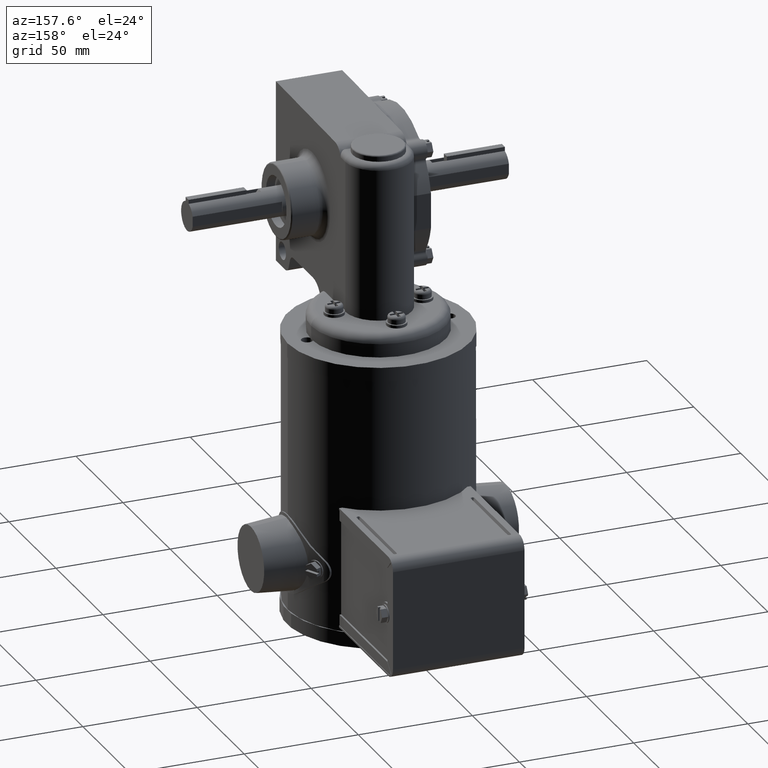
[diagram: clean part render]
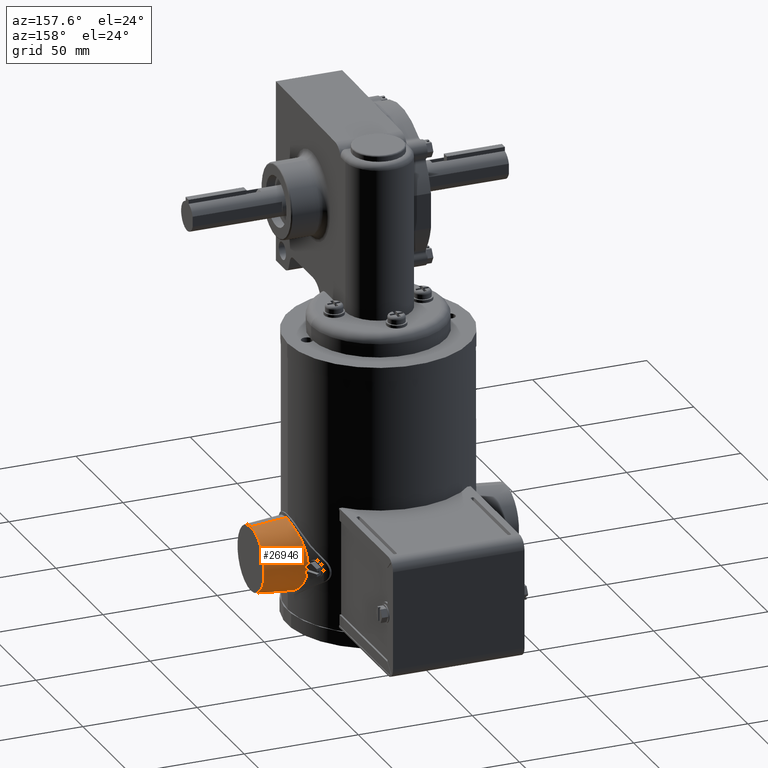
[diagram: same view with one face highlighted and labeled with its STEP entity id]
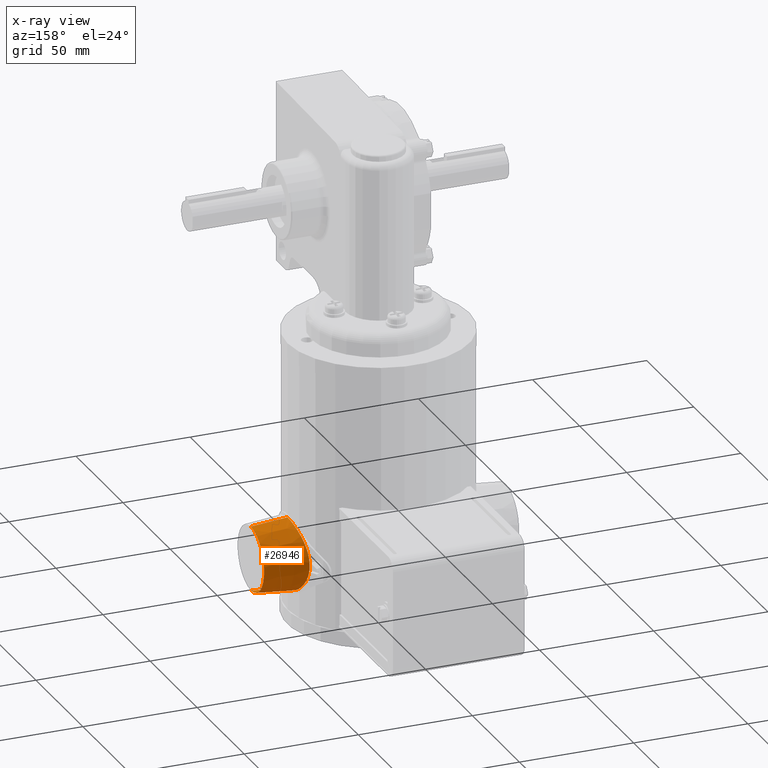
[diagram: x-ray of the same camera — body ghosted, the highlighted face saturated]
A machine part, auxiliary view. The second image highlights one B-rep face of the part: STEP entity #26946.
The next image is the same camera in x-ray: the body ghosted, the highlighted face saturated — about 0% of this face is hidden behind the body in this view.
In plain terms, the highlighted conical surface has half-angle 5 deg.
Its self-contained STEP definition (entity closure, byte-faithful):
#732 = EDGE_CURVE ( 'NONE', #1474, #18289, #12802, .T. ) ;
#986 = FACE_OUTER_BOUND ( 'NONE', #25042, .T. ) ;
#1466 = CARTESIAN_POINT ( 'NONE',  ( 1.560937288544655500, 0.07277900882165479200, -4.583810513606582800 ) ) ;
#1474 = VERTEX_POINT ( 'NONE', #21180 ) ;
#1563 = CARTESIAN_POINT ( 'NONE',  ( 1.469941703517666500, 0.5298918123291536100, -4.882499106706187100 ) ) ;
#1662 = CARTESIAN_POINT ( 'NONE',  ( 1.459428750983772200, 0.5581645358877556100, -5.448121240871495600 ) ) ;
#1748 = CARTESIAN_POINT ( 'NONE',  ( 1.542835544801296900, 0.2478352492964187600, -5.750892456123928300 ) ) ;
#3103 = VERTEX_POINT ( 'NONE', #19661 ) ;
#3572 = CARTESIAN_POINT ( 'NONE',  ( 1.556976240772422600, 0.1327793339256771700, -4.594609311019440600 ) ) ;
#3669 = CARTESIAN_POINT ( 'NONE',  ( 1.459417635706792500, 0.5581921932297877500, -4.935848242282936800 ) ) ;
#3692 = VECTOR ( 'NONE', #14526, 39.37007874015748100 ) ;
#3766 = CARTESIAN_POINT ( 'NONE',  ( 1.470022105416793500, 0.5296690482322886600, -5.501767629015589000 ) ) ;
#3845 = CARTESIAN_POINT ( 'NONE',  ( 1.570000000000000300, -0.009186274349188141400, -4.579446291046613400 ) ) ;
#3863 = CARTESIAN_POINT ( 'NONE',  ( 1.555511902750471400, 0.1529914317663684500, -5.785309630188698400 ) ) ;
#4083 = AXIS2_PLACEMENT_3D ( 'NONE', #11248, #26035, #13374 ) ;
#5542 = AXIS2_PLACEMENT_3D ( 'NONE', #11244, #9089, #7056 ) ;
#5679 = CARTESIAN_POINT ( 'NONE',  ( 1.570000000000000300, -0.009186274349188066800, -5.804446291046613900 ) ) ;
#5729 = CARTESIAN_POINT ( 'NONE',  ( 1.550851568673694600, 0.1914413092559509300, -4.611108014436371900 ) ) ;
#5818 = CARTESIAN_POINT ( 'NONE',  ( 1.445147561625384400, 0.5941687984426247100, -5.029732237047085200 ) ) ;
#5915 = CARTESIAN_POINT ( 'NONE',  ( 1.481606193973517900, 0.4963805514632049200, -5.551796953836981400 ) ) ;
#6014 = CARTESIAN_POINT ( 'NONE',  ( 1.560958877965417100, 0.07231837336906318800, -5.800142494373814000 ) ) ;
#6427 = ORIENTED_EDGE ( 'NONE', *, *, #732, .T. ) ;
#7056 = DIRECTION ( 'NONE',  ( 0.0000000000000000000, 0.0000000000000000000, -1.000000000000000000 ) ) ;
#7113 = VECTOR ( 'NONE', #10021, 39.37007874015748100 ) ;
#7854 = CARTESIAN_POINT ( 'NONE',  ( 1.539924523123420200, 0.2673819599291081800, -4.640987430261614800 ) ) ;
#7953 = CARTESIAN_POINT ( 'NONE',  ( 1.436386836960556100, 0.6149789470875398600, -5.150890723002581800 ) ) ;
#8034 = CARTESIAN_POINT ( 'NONE',  ( 1.493838358662164900, 0.4582990843716382400, -5.598424178616176600 ) ) ;
#8129 = CARTESIAN_POINT ( 'NONE',  ( 1.562592633834070500, 0.01116270617488668600, -5.805094351612717100 ) ) ;
#9089 = DIRECTION ( 'NONE',  ( -1.000000000000000000, -0.0000000000000000000, -0.0000000000000000000 ) ) ;
#9332 = LINE ( 'NONE', #3845, #3692 ) ;
#9979 = CARTESIAN_POINT ( 'NONE',  ( 1.518408349031761900, 0.3701701550724434400, -4.703677841062019900 ) ) ;
#10021 = DIRECTION ( 'NONE',  ( -0.9961946980917454300, 0.0000000000000000000, -0.08715574274765836000 ) ) ;
#10075 = CARTESIAN_POINT ( 'NONE',  ( 1.436807727143277300, 0.6139991037970151700, -5.232298879916016600 ) ) ;
#10176 = CARTESIAN_POINT ( 'NONE',  ( 1.510387955288117000, 0.4012867500109716400, -5.655300944132897600 ) ) ;
#10882 = CARTESIAN_POINT ( 'NONE',  ( 1.562472995722993000, -0.009186274349188079000, -4.578787763502062600 ) ) ;
#11244 = CARTESIAN_POINT ( 'NONE',  ( 1.570000000000000300, -0.009186274349188066800, -5.191946291046614100 ) ) ;
#11248 = CARTESIAN_POINT ( 'NONE',  ( 2.195000000000000300, -0.009186274349188066800, -5.191946291046614100 ) ) ;
#11282 = B_SPLINE_CURVE_WITH_KNOTS ( 'NONE', 3,
 ( #24664, #26839, #14161, #1466, #16330, #3572, #18450, #5729, #20543, #7854, #22673, #9979, #24763, #12134, #26918, #14266, #1563, #16416, #3669, #18542, #5818, #20632, #7953, #22770, #10075, #24860, #12230, #27007, #14352, #1662, #16503, #3766, #18630, #5915, #20733, #8034, #22870, #10176, #24943, #12328, #27108, #14449, #1748, #16606, #3863, #18717, #6014, #20827, #8129, #22952 ),
 .UNSPECIFIED., .F., .F.,
 ( 4, 2, 2, 2, 2, 2, 2, 2, 2, 2, 2, 2, 2, 2, 2, 2, 2, 2, 2, 2, 2, 2, 2, 2, 4 ),
 ( 0.02960932508735104900, 0.03116098691424253700, 0.03271264874113402600, 0.03426431056802551500, 0.03581597239491700300, 0.03891929604869998100, 0.04202261970248296500, 0.04512594335626594200, 0.04667760518315743800, 0.04822926701004892600, 0.05133259066383191700, 0.05443591431761490200, 0.05598757614450639000, 0.05753923797139788600, 0.06064256162518079400, 0.06219422345207224800, 0.06374588527896370100, 0.06529754710585515500, 0.06684920893274662300, 0.06995253258652946200, 0.07150419441342087400, 0.07305585624031230000, 0.07615917989409515300, 0.07771084172098656500, 0.07926250354787799100 ),
 .UNSPECIFIED. ) ;
#12134 = CARTESIAN_POINT ( 'NONE',  ( 1.493799509591879700, 0.4591898149780764300, -4.785020298840096900 ) ) ;
#12230 = CARTESIAN_POINT ( 'NONE',  ( 1.439911815109585500, 0.6066961319876195100, -5.293595367101666200 ) ) ;
#12328 = CARTESIAN_POINT ( 'NONE',  ( 1.529538135015781500, 0.3197112992602159100, -5.713227907191817500 ) ) ;
#12623 = EDGE_CURVE ( 'NONE', #26882, #18289, #11282, .T. ) ;
#12802 = LINE ( 'NONE', #5679, #7113 ) ;
#13374 = DIRECTION ( 'NONE',  ( 0.0000000000000000000, 0.0000000000000000000, -1.000000000000000000 ) ) ;
#13448 = EDGE_CURVE ( 'NONE', #3103, #26882, #9332, .T. ) ;
#13606 = ORIENTED_EDGE ( 'NONE', *, *, #12623, .F. ) ;
#14161 = CARTESIAN_POINT ( 'NONE',  ( 1.562304899903300500, 0.03202190863054296700, -4.579816754239791600 ) ) ;
#14266 = CARTESIAN_POINT ( 'NONE',  ( 1.473773422209862600, 0.5191761461394885900, -4.865177318112071000 ) ) ;
#14352 = CARTESIAN_POINT ( 'NONE',  ( 1.450098056281045300, 0.5821654322040442600, -5.392119608468100900 ) ) ;
#14449 = CARTESIAN_POINT ( 'NONE',  ( 1.539764743648097500, 0.2662090201922960900, -5.742378541967112500 ) ) ;
#14526 = DIRECTION ( 'NONE',  ( -0.9961946980917454300, -1.067350013832299500E-017, 0.08715574274765836000 ) ) ;
#16330 = CARTESIAN_POINT ( 'NONE',  ( 1.559862098899023900, 0.09292791973299986700, -4.586778055309287600 ) ) ;
#16416 = CARTESIAN_POINT ( 'NONE',  ( 1.462773612009088800, 0.5493699159253070400, -4.917797920662597900 ) ) ;
#16503 = CARTESIAN_POINT ( 'NONE',  ( 1.462845238657859000, 0.5491794777714766900, -5.466468705952733500 ) ) ;
#16592 = CIRCLE ( 'NONE', #4083, 0.5578195852962972700 ) ;
#16606 = CARTESIAN_POINT ( 'NONE',  ( 1.551154505610561100, 0.1917192377112365600, -5.773707716272981300 ) ) ;
#17409 = ORIENTED_EDGE ( 'NONE', *, *, #20912, .T. ) ;
#18289 = VERTEX_POINT ( 'NONE', #24402 ) ;
#18450 = CARTESIAN_POINT ( 'NONE',  ( 1.555165476164365600, 0.1524818175841118900, -4.599473085097154800 ) ) ;
#18542 = CARTESIAN_POINT ( 'NONE',  ( 1.450187725159959500, 0.5819366389686370100, -4.991214526618678700 ) ) ;
#18630 = CARTESIAN_POINT ( 'NONE',  ( 1.473798731214031000, 0.5191029433200337100, -5.518823336483082500 ) ) ;
#18717 = CARTESIAN_POINT ( 'NONE',  ( 1.559869991836788900, 0.09282354504744191900, -5.797135903754101700 ) ) ;
#19661 = CARTESIAN_POINT ( 'NONE',  ( 2.195000000000000300, -0.009186274349188139700, -4.634126705750316200 ) ) ;
#20200 = CONICAL_SURFACE ( 'NONE', #5542, 0.6125000000000000400, 0.08726646259971666800 ) ;
#20543 = CARTESIAN_POINT ( 'NONE',  ( 1.548332618310539500, 0.2107983703180208200, -4.617922278453274700 ) ) ;
#20632 = CARTESIAN_POINT ( 'NONE',  ( 1.438173020934059700, 0.6108571009425570700, -5.110348830990980100 ) ) ;
#20733 = CARTESIAN_POINT ( 'NONE',  ( 1.485637241140668600, 0.4842242045605479300, -5.567714774400037900 ) ) ;
#20827 = CARTESIAN_POINT ( 'NONE',  ( 1.562315018920336100, 0.03153327578527927900, -5.804108060051464500 ) ) ;
#20912 = EDGE_CURVE ( 'NONE', #3103, #1474, #16592, .T. ) ;
#21180 = CARTESIAN_POINT ( 'NONE',  ( 2.195000000000000300, -0.009186274349188066800, -5.749765876342911100 ) ) ;
#21248 = ORIENTED_EDGE ( 'NONE', *, *, #13448, .F. ) ;
#22673 = CARTESIAN_POINT ( 'NONE',  ( 1.533229937757293300, 0.3029782435761446100, -4.659713084794766800 ) ) ;
#22770 = CARTESIAN_POINT ( 'NONE',  ( 1.436370620195488200, 0.6150168222315870500, -5.211914728477236900 ) ) ;
#22870 = CARTESIAN_POINT ( 'NONE',  ( 1.498025396862271400, 0.4444663155505493800, -5.613268430423463700 ) ) ;
#22952 = CARTESIAN_POINT ( 'NONE',  ( 1.562472995722992100, -0.009186274349188066800, -5.805104818591163800 ) ) ;
#24402 = CARTESIAN_POINT ( 'NONE',  ( 1.562472995722992100, -0.009186274349188066800, -5.805104818591163800 ) ) ;
#24664 = CARTESIAN_POINT ( 'NONE',  ( 1.562472995722993000, -0.009186274349188079000, -4.578787763502062600 ) ) ;
#24763 = CARTESIAN_POINT ( 'NONE',  ( 1.510204641722419100, 0.4019629350532183400, -4.729187198625161200 ) ) ;
#24860 = CARTESIAN_POINT ( 'NONE',  ( 1.438575579846464100, 0.6098455913684877000, -5.273154962611698700 ) ) ;
#24943 = CARTESIAN_POINT ( 'NONE',  ( 1.518422716043113900, 0.3701115923246775000, -5.680258804823527200 ) ) ;
#25042 = EDGE_LOOP ( 'NONE', ( #21248, #17409, #6427, #13606 ) ) ;
#26035 = DIRECTION ( 'NONE',  ( -1.000000000000000000, 0.0000000000000000000, -0.0000000000000000000 ) ) ;
#26839 = CARTESIAN_POINT ( 'NONE',  ( 1.562593477093204600, 0.01130613424736531600, -4.578798304256123300 ) ) ;
#26882 = VERTEX_POINT ( 'NONE', #10882 ) ;
#26918 = CARTESIAN_POINT ( 'NONE',  ( 1.485541898728208300, 0.4849272110870622700, -4.815471420125983400 ) ) ;
#26946 = ADVANCED_FACE ( 'NONE', ( #986 ), #20200, .T. ) ;
#27007 = CARTESIAN_POINT ( 'NONE',  ( 1.445083451690492500, 0.5943231402982466200, -5.353511482887725500 ) ) ;
#27108 = CARTESIAN_POINT ( 'NONE',  ( 1.533091000136201300, 0.3022824730526292900, -5.723476280424423000 ) ) ;